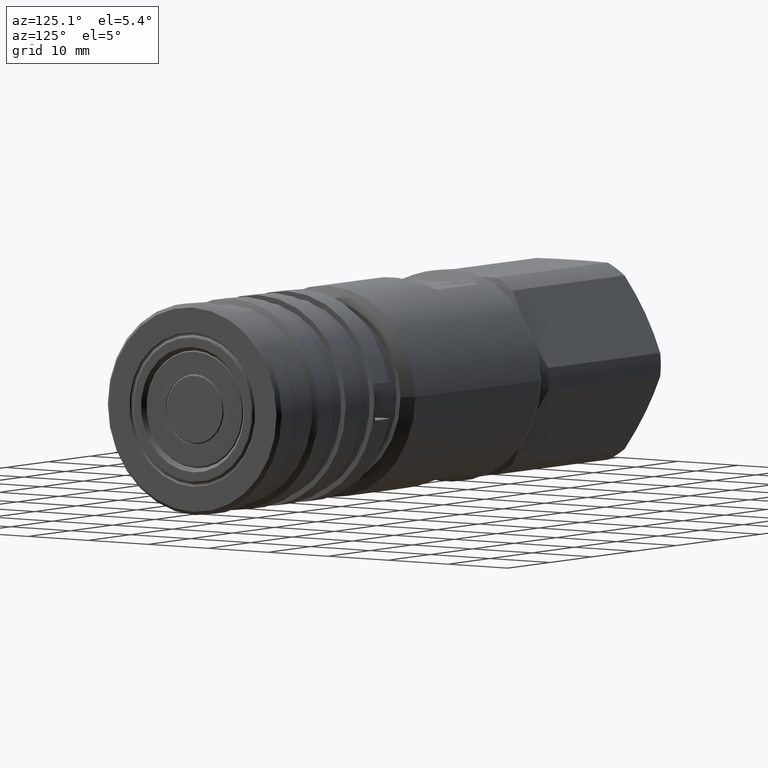
[diagram: clean part render]
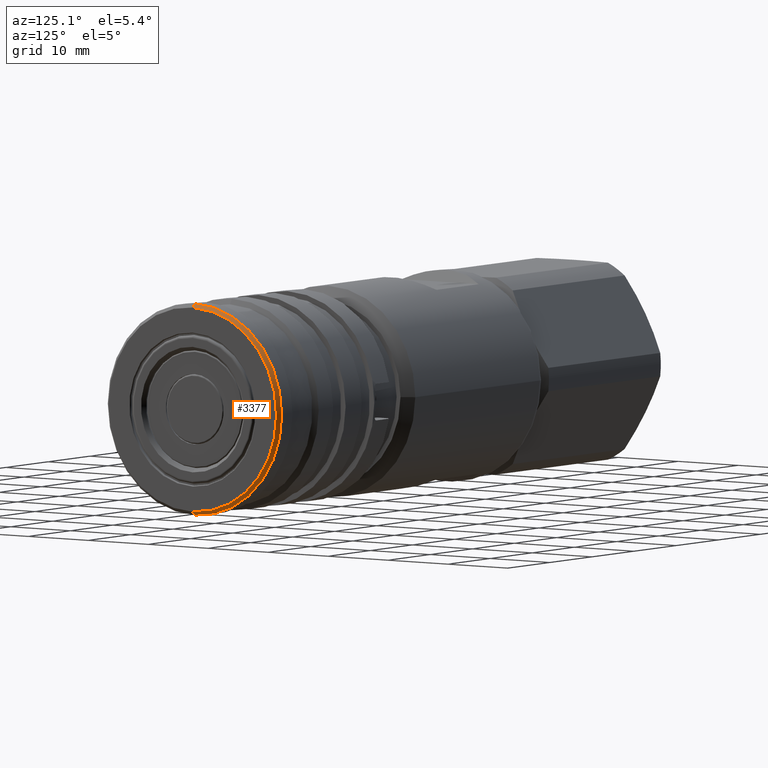
[diagram: same view with one face highlighted and labeled with its STEP entity id]
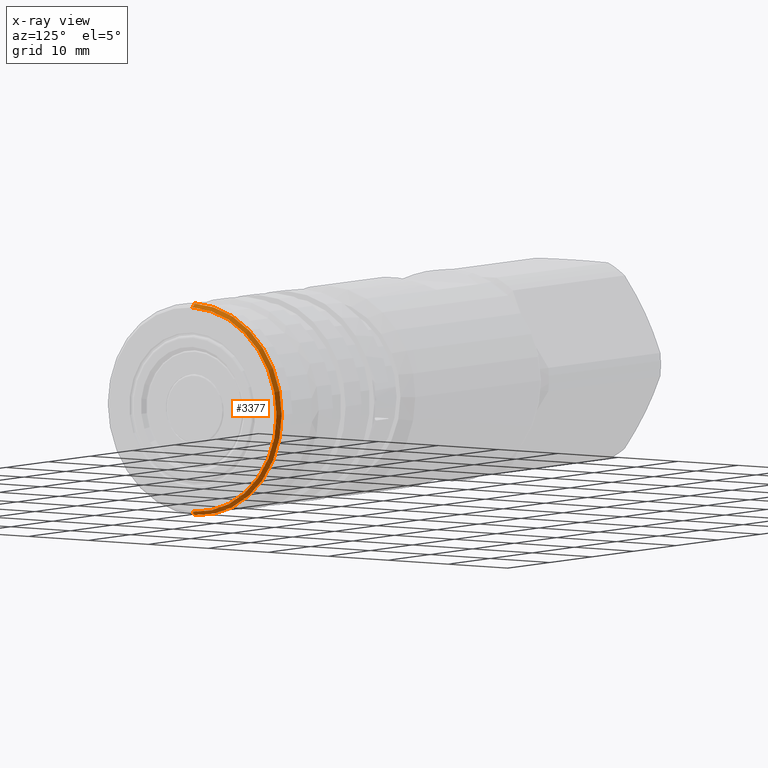
[diagram: x-ray of the same camera — body ghosted, the highlighted face saturated]
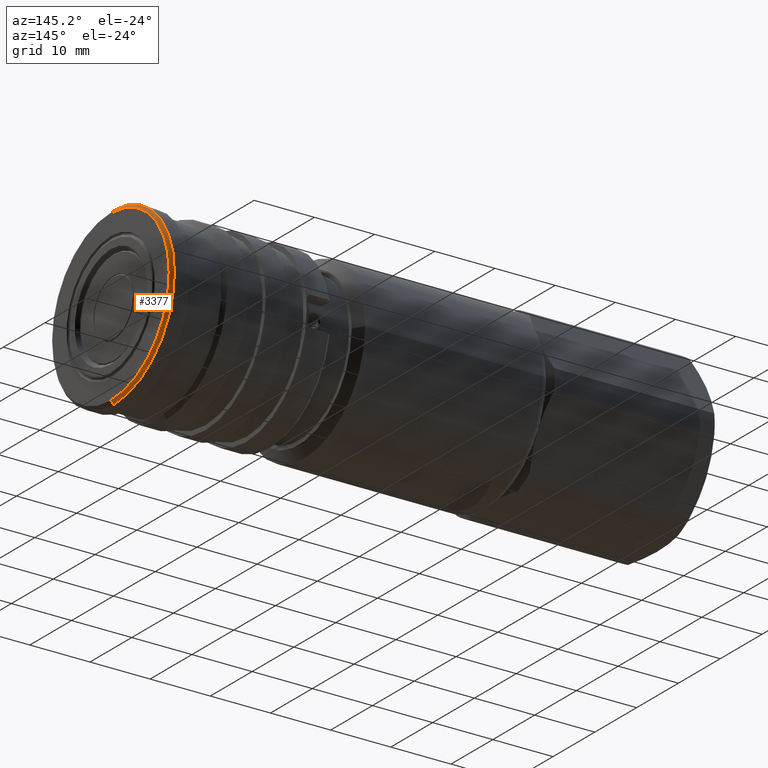
[diagram: same view with one face highlighted and labeled with its STEP entity id]
A machine part, auxiliary view. The second image highlights one B-rep face of the part: STEP entity #3377.
The next image is the same camera in x-ray: the body ghosted, the highlighted face saturated — about 0% of this face is hidden behind the body in this view.
A second angle (auxiliary view) of the same face is appended — the face is thin or edge-on in the first view.
In plain terms, the highlighted conical surface has half-angle 45 deg.
Its self-contained STEP definition (entity closure, byte-faithful):
#158 = VERTEX_POINT ( 'NONE', #625 ) ;
#163 = VERTEX_POINT ( 'NONE', #637 ) ;
#166 = VERTEX_POINT ( 'NONE', #633 ) ;
#167 = VERTEX_POINT ( 'NONE', #634 ) ;
#321 = DIRECTION ( 'NONE',  ( -0.7071067811865500200, 0.0000000000000000000, 0.7071067811865451300 ) ) ;
#322 = CARTESIAN_POINT ( 'NONE',  ( 44.69999999999998900, -9.884099541659373900E-016, 14.50000000000000000 ) ) ;
#330 = DIRECTION ( 'NONE',  ( 0.0000000000000000000, 0.0000000000000000000, -1.000000000000000000 ) ) ;
#332 = DIRECTION ( 'NONE',  ( -1.000000000000000000, -0.0000000000000000000, -0.0000000000000000000 ) ) ;
#333 = CARTESIAN_POINT ( 'NONE',  ( 44.69999999999998900, -9.884099541659373900E-016, 8.296725741381169100E-017 ) ) ;
#359 = CARTESIAN_POINT ( 'NONE',  ( 44.69999999999998900, 7.873279045977246200E-016, -14.50000000000000000 ) ) ;
#360 = DIRECTION ( 'NONE',  ( 0.0000000000000000000, 0.0000000000000000000, -1.000000000000000000 ) ) ;
#361 = DIRECTION ( 'NONE',  ( 1.000000000000000000, 0.0000000000000000000, 0.0000000000000000000 ) ) ;
#517 = CARTESIAN_POINT ( 'NONE',  ( 45.20000000000000300, -9.884099541659373900E-016, 8.296725741381169100E-017 ) ) ;
#521 = DIRECTION ( 'NONE',  ( -0.7071067811865500200, 8.659560562354904500E-017, -0.7071067811865451300 ) ) ;
#625 = CARTESIAN_POINT ( 'NONE',  ( 44.69999999999998900, 7.873279045977246200E-016, -14.50000000000000000 ) ) ;
#633 = CARTESIAN_POINT ( 'NONE',  ( 45.20000000000000300, -9.884099541659373900E-016, 13.99999999999999600 ) ) ;
#634 = CARTESIAN_POINT ( 'NONE',  ( 44.69999999999998900, -9.884099541659373900E-016, 14.50000000000000000 ) ) ;
#637 = CARTESIAN_POINT ( 'NONE',  ( 45.20000000000000300, 7.567117346190408300E-016, -13.99999999999999600 ) ) ;
#981 = ORIENTED_EDGE ( 'NONE', *, *, #2776, .F. ) ;
#983 = ORIENTED_EDGE ( 'NONE', *, *, #2779, .F. ) ;
#989 = ORIENTED_EDGE ( 'NONE', *, *, #2777, .T. ) ;
#991 = ORIENTED_EDGE ( 'NONE', *, *, #2781, .F. ) ;
#1153 = LINE ( 'NONE', #359, #1155 ) ;
#1154 = CIRCLE ( 'NONE', #3070, 13.99999999999999600 ) ;
#1155 = VECTOR ( 'NONE', #521, 1000.000000000000100 ) ;
#1156 = LINE ( 'NONE', #322, #1158 ) ;
#1157 = CIRCLE ( 'NONE', #3071, 14.50000000000000000 ) ;
#1158 = VECTOR ( 'NONE', #321, 1000.000000000000100 ) ;
#1777 = FACE_OUTER_BOUND ( 'NONE', #2424, .T. ) ;
#1778 = CONICAL_SURFACE ( 'NONE', #3229, 14.50000000000000000, 0.7853981633974447300 ) ;
#2424 = EDGE_LOOP ( 'NONE', ( #981, #989, #983, #991 ) ) ;
#2776 = EDGE_CURVE ( 'NONE', #163, #166, #1154, .T. ) ;
#2777 = EDGE_CURVE ( 'NONE', #163, #158, #1153, .T. ) ;
#2779 = EDGE_CURVE ( 'NONE', #167, #158, #1157, .T. ) ;
#2781 = EDGE_CURVE ( 'NONE', #166, #167, #1156, .T. ) ;
#3070 = AXIS2_PLACEMENT_3D ( 'NONE', #517, #361, #360 ) ;
#3071 = AXIS2_PLACEMENT_3D ( 'NONE', #333, #332, #330 ) ;
#3229 = AXIS2_PLACEMENT_3D ( 'NONE', #4106, #4105, #4104 ) ;
#3377 = ADVANCED_FACE ( 'NONE', ( #1777 ), #1778, .T. ) ;
#4104 = DIRECTION ( 'NONE',  ( 0.0000000000000000000, 0.0000000000000000000, 1.000000000000000000 ) ) ;
#4105 = DIRECTION ( 'NONE',  ( -1.000000000000000000, -0.0000000000000000000, -0.0000000000000000000 ) ) ;
#4106 = CARTESIAN_POINT ( 'NONE',  ( 44.69999999999998900, -9.884099541659373900E-016, 8.296725741381169100E-017 ) ) ;